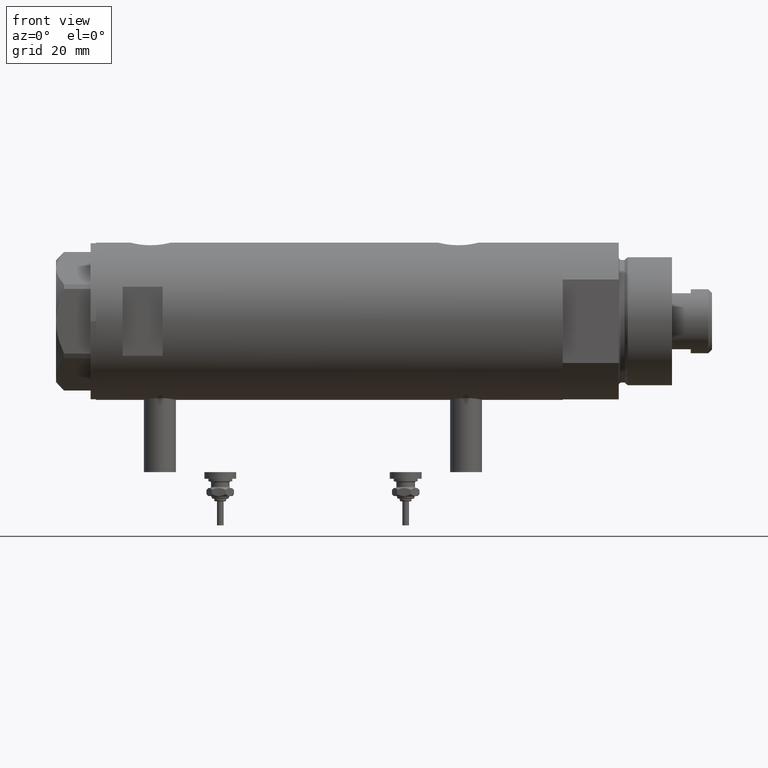
[diagram: clean part render]
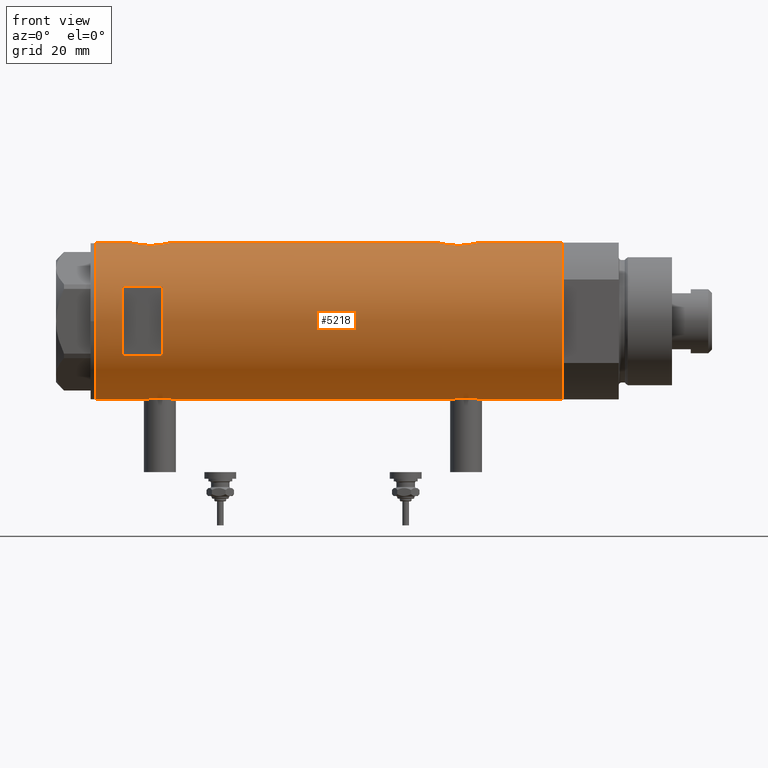
[diagram: same view with one face highlighted and labeled with its STEP entity id]
A machine part, front view. The second image highlights one B-rep face of the part: STEP entity #5218.
In plain terms, the highlighted cylindrical surface (partial cylindrical patch) has radius 29.5 mm, axis along (-1, -0, 0).
Its self-contained STEP definition (entity closure, byte-faithful):
#11 = CARTESIAN_POINT ( 'NONE',  ( 28.53399451186755087, -7.487442594623177961, 67.59897485501115000 ) ) ;
#29 = CARTESIAN_POINT ( 'NONE',  ( 12.96148139681573319, -26.49999999999998934, 77.60000000000002274 ) ) ;
#57 = CARTESIAN_POINT ( 'NONE',  ( -29.49152014567325253, -0.8152473631539829402, 57.38964705166666391 ) ) ;
#73 = CARTESIAN_POINT ( 'NONE',  ( -29.50000000000000355, 3.612708057484692393E-15, -87.59999999999999432 ) ) ;
#78 = CARTESIAN_POINT ( 'NONE',  ( 29.50000000000000355, -2.136503572369537054E-15, 59.59999999999999432 ) ) ;
#92 = DIRECTION ( 'NONE',  ( 0.000000000000000000, 0.000000000000000000, 1.000000000000000000 ) ) ;
#130 = VERTEX_POINT ( 'NONE', #1765 ) ;
#183 = CARTESIAN_POINT ( 'NONE',  ( -29.37055817176825556, -2.766456155496577196, -56.90813607588912504 ) ) ;
#191 = CARTESIAN_POINT ( 'NONE',  ( -28.83909499632370199, -6.209928350489659188, 64.41617781082960903 ) ) ;
#203 = CARTESIAN_POINT ( 'NONE',  ( 29.43916859571211120, -1.954329820671499407, -55.65764479242087504 ) ) ;
#228 = AXIS2_PLACEMENT_3D ( 'NONE', #3352, #2902, #3819 ) ;
#267 = CARTESIAN_POINT ( 'NONE',  ( -29.21016169868140366, -4.135295259288787051, 68.30390088086507205 ) ) ;
#294 = CARTESIAN_POINT ( 'NONE',  ( -28.83034328164762528, -6.249904501012242264, 63.39085460435941854 ) ) ;
#310 = CARTESIAN_POINT ( 'NONE',  ( -28.96072448608914485, -5.617106371651703789, -48.52917268339558632 ) ) ;
#319 = AXIS2_PLACEMENT_3D ( 'NONE', #2784, #528, #1010 ) ;
#341 = CARTESIAN_POINT ( 'NONE',  ( 28.89374408016308848, -5.952042782108791563, -43.83015462974033483 ) ) ;
#368 = CARTESIAN_POINT ( 'NONE',  ( 28.59279484545186989, -7.260293545345763100, -50.34406557984473096 ) ) ;
#371 = CARTESIAN_POINT ( 'NONE',  ( -29.50000000000000711, -0.4141077724969866591, -45.04999999999999005 ) ) ;
#390 = CARTESIAN_POINT ( 'NONE',  ( 29.26065241255352589, -3.756597382275444819, -41.90395565180811133 ) ) ;
#397 = ORIENTED_EDGE ( 'NONE', *, *, #4374, .F. ) ;
#402 = DIRECTION ( 'NONE',  ( -0.000000000000000000, -0.000000000000000000, -1.000000000000000000 ) ) ;
#405 = CARTESIAN_POINT ( 'NONE',  ( 28.55627543367308618, -7.402134446380869370, 68.33219650318235949 ) ) ;
#430 = ORIENTED_EDGE ( 'NONE', *, *, #4538, .T. ) ;
#439 = CARTESIAN_POINT ( 'NONE',  ( 28.62983003203746435, -7.114781472982441457, 64.67726941146263187 ) ) ;
#442 = AXIS2_PLACEMENT_3D ( 'NONE', #3355, #2541, #1090 ) ;
#495 = CARTESIAN_POINT ( 'NONE',  ( 29.14351131874355971, -4.576283785862454323, 61.15294675151478287 ) ) ;
#522 = CARTESIAN_POINT ( 'NONE',  ( -12.96148139681573319, -26.49999999999999645, -87.59999999999999432 ) ) ;
#525 = DIRECTION ( 'NONE',  ( 0.000000000000000000, 0.000000000000000000, 1.000000000000000000 ) ) ;
#528 = DIRECTION ( 'NONE',  ( 0.000000000000000000, 0.000000000000000000, 1.000000000000000000 ) ) ;
#557 = CARTESIAN_POINT ( 'NONE',  ( 29.31438578683260232, -3.335040812377226604, 60.36452723156224920 ) ) ;
#563 = VERTEX_POINT ( 'NONE', #29 ) ;
#598 = CARTESIAN_POINT ( 'NONE',  ( -29.21108587560690495, -4.128853169727751293, 58.89032723090409149 ) ) ;
#606 = CARTESIAN_POINT ( 'NONE',  ( 29.31438578683259522, -3.335040812377227937, -55.13547276843772238 ) ) ;
#636 = CARTESIAN_POINT ( 'NONE',  ( 29.08168479815708451, -4.954011967599717181, -54.03627368515270035 ) ) ;
#646 = CARTESIAN_POINT ( 'NONE',  ( -29.45797511864983420, -1.625450914296657334, -57.34905127530046087 ) ) ;
#669 = CARTESIAN_POINT ( 'NONE',  ( -29.33428005013168871, -3.127775714777722982, -56.71493203872592659 ) ) ;
#675 = VERTEX_POINT ( 'NONE', #1679 ) ;
#680 = CARTESIAN_POINT ( 'NONE',  ( -29.50000000000000355, -1.989795151372050188E-15, -45.04999999999999005 ) ) ;
#700 = CARTESIAN_POINT ( 'NONE',  ( -29.21108587560690495, -4.128853169727750405, -56.00967276909590709 ) ) ;
#704 = ORIENTED_EDGE ( 'NONE', *, *, #3252, .F. ) ;
#741 = CARTESIAN_POINT ( 'NONE',  ( 29.50000000000001066, -0.4905639552620957300, 74.59999999999998010 ) ) ;
#747 = ORIENTED_EDGE ( 'NONE', *, *, #869, .T. ) ;
#783 = CARTESIAN_POINT ( 'NONE',  ( 29.40378957563275009, -2.423455993307766398, -41.28550539884014370 ) ) ;
#785 = CARTESIAN_POINT ( 'NONE',  ( -28.83028160285195440, -6.250189016175739631, -50.89032996785321927 ) ) ;
#813 = CARTESIAN_POINT ( 'NONE',  ( 29.33743940633121028, -3.100990836771690073, -41.56672487560935281 ) ) ;
#854 = CARTESIAN_POINT ( 'NONE',  ( 12.96148139681573319, -26.49999999999999645, -87.59999999999999432 ) ) ;
#856 = CARTESIAN_POINT ( 'NONE',  ( 29.50000000000000355, -8.867894669064240341E-21, 74.59999999999999432 ) ) ;
#869 = EDGE_CURVE ( 'NONE', #4144, #675, #2700, .T. ) ;
#870 = CARTESIAN_POINT ( 'NONE',  ( 28.59337635119608123, -7.258007499531542450, -46.44783774348638872 ) ) ;
#873 = CARTESIAN_POINT ( 'NONE',  ( -29.05872136210574297, -5.084685578900233871, -47.65990008091242203 ) ) ;
#887 = CARTESIAN_POINT ( 'NONE',  ( 28.54678862679669749, -7.438514536388028731, 68.08958274320792725 ) ) ;
#920 = CARTESIAN_POINT ( 'NONE',  ( 28.95592074821773210, -5.641779806288288235, 62.15226504197970314 ) ) ;
#930 = CARTESIAN_POINT ( 'NONE',  ( -29.50000000000000355, 3.612708057484692393E-15, 87.59999999999999432 ) ) ;
#940 = CARTESIAN_POINT ( 'NONE',  ( -29.50000000000000355, 3.612708057484692393E-15, -87.59999999999999432 ) ) ;
#949 = CARTESIAN_POINT ( 'NONE',  ( 29.08168479815707386, -4.954011967599708299, 61.46372631484727833 ) ) ;
#999 = CIRCLE ( 'NONE', #228, 29.50000000000000355 ) ;
#1010 = DIRECTION ( 'NONE',  ( 1.000000000000000000, 0.000000000000000000, 0.000000000000000000 ) ) ;
#1069 = DIRECTION ( 'NONE',  ( 1.000000000000000000, 0.000000000000000000, 0.000000000000000000 ) ) ;
#1074 = CARTESIAN_POINT ( 'NONE',  ( -29.37055817176824490, -2.766456155496578084, 57.99186392411088775 ) ) ;
#1090 = DIRECTION ( 'NONE',  ( 1.776356839400250267E-15, 1.000000000000000000, 4.704334850106595203E-15 ) ) ;
#1094 = CARTESIAN_POINT ( 'NONE',  ( -29.50000000000000711, -0.4084468586314279337, -57.55000000000000426 ) ) ;
#1149 = DIRECTION ( 'NONE',  ( 0.000000000000000000, 0.000000000000000000, 1.000000000000000000 ) ) ;
#1175 = CARTESIAN_POINT ( 'NONE',  ( -28.91427970886711307, -5.849862889315922132, -53.50993133128852008 ) ) ;
#1192 = CARTESIAN_POINT ( 'NONE',  ( -29.45566469296798928, -1.628675872921093726, 69.63756032628675996 ) ) ;
#1236 = VERTEX_POINT ( 'NONE', #1813 ) ;
#1242 = CARTESIAN_POINT ( 'NONE',  ( -28.84137202824161861, -6.198846007008993908, -52.12388261123874145 ) ) ;
#1264 = CARTESIAN_POINT ( 'NONE',  ( 28.95619957017310497, -5.640369376407877056, -43.45060273509821513 ) ) ;
#1266 = CARTESIAN_POINT ( 'NONE',  ( -29.33479068874800433, -3.136645782783870295, -45.87844745385529421 ) ) ;
#1277 = CARTESIAN_POINT ( 'NONE',  ( 29.33743940633120673, -3.100990836771692294, 73.93327512439066140 ) ) ;
#1289 = CIRCLE ( 'NONE', #3464, 29.50000000000000355 ) ;
#1330 = CARTESIAN_POINT ( 'NONE',  ( 29.50000000000001066, -0.4905639552620955079, -40.89999999999999858 ) ) ;
#1332 = DIRECTION ( 'NONE',  ( 0.000000000000000000, 0.000000000000000000, 1.000000000000000000 ) ) ;
#1365 = CARTESIAN_POINT ( 'NONE',  ( 28.86290657878784671, -6.099358034152101204, 62.72869329957394058 ) ) ;
#1392 = CARTESIAN_POINT ( 'NONE',  ( 29.50000000000000355, -2.136503572369537054E-15, 59.59999999999999432 ) ) ;
#1414 = CARTESIAN_POINT ( 'NONE',  ( 29.50000000000000355, -8.867894669064240341E-21, 74.59999999999999432 ) ) ;
#1425 = LINE ( 'NONE', #522, #3934 ) ;
#1439 = VERTEX_POINT ( 'NONE', #5563 ) ;
#1465 = CARTESIAN_POINT ( 'NONE',  ( -29.38738983525000137, -2.582042051636497693, 57.90464828404618913 ) ) ;
#1582 = CARTESIAN_POINT ( 'NONE',  ( -28.83028160285196151, -6.250189016175732526, 64.00967003214678641 ) ) ;
#1616 = CARTESIAN_POINT ( 'NONE',  ( -29.14490888978862770, -4.565669626908225531, 67.87298179876214022 ) ) ;
#1679 = CARTESIAN_POINT ( 'NONE',  ( 29.50000000000000355, -1.363453657738827866E-15, -55.89999999999999858 ) ) ;
#1698 = CARTESIAN_POINT ( 'NONE',  ( -28.89828397447510255, -5.929977241120610643, -49.28388047758001989 ) ) ;
#1704 = LINE ( 'NONE', #854, #5191 ) ;
#1721 = CARTESIAN_POINT ( 'NONE',  ( 28.55627543367308618, -7.402134446380870259, -47.16780349681763340 ) ) ;
#1731 = CARTESIAN_POINT ( 'NONE',  ( 28.98816846638396427, -5.474212100855878838, 72.23252159883305978 ) ) ;
#1765 = CARTESIAN_POINT ( 'NONE',  ( 12.96148139681573319, -26.49999999999998934, 62.59999999999998721 ) ) ;
#1780 = CYLINDRICAL_SURFACE ( 'NONE', #2049, 29.50000000000000355 ) ;
#1783 = CARTESIAN_POINT ( 'NONE',  ( 28.72051071455671334, -6.739402597165489617, -51.72718973703752710 ) ) ;
#1805 = FACE_OUTER_BOUND ( 'NONE', #2786, .T. ) ;
#1809 = CARTESIAN_POINT ( 'NONE',  ( -28.83260549167351527, -6.239494599049535850, -51.71615084301800636 ) ) ;
#1813 = CARTESIAN_POINT ( 'NONE',  ( -29.50000000000000355, -3.685106651658548747E-16, 69.84999999999999432 ) ) ;
#1818 = CARTESIAN_POINT ( 'NONE',  ( 29.40305664607911140, -2.432276947006145829, 59.98852198993411378 ) ) ;
#1843 = CARTESIAN_POINT ( 'NONE',  ( 28.53070445389874621, -7.499926890973428684, 67.34953420512916011 ) ) ;
#1897 = CARTESIAN_POINT ( 'NONE',  ( 28.77424839213764329, -6.509286280845849149, 63.34218748394043530 ) ) ;
#1907 = CARTESIAN_POINT ( 'NONE',  ( -29.43333839972900634, -2.017691896334577351, 57.67064010952157105 ) ) ;
#1912 = EDGE_CURVE ( 'NONE', #4733, #4736, #5869, .T. ) ;
#1936 = CARTESIAN_POINT ( 'NONE',  ( -29.25427426731712544, -3.815048240656437439, 58.63259231846663511 ) ) ;
#1968 = EDGE_CURVE ( 'NONE', #4234, #4127, #2887, .T. ) ;
#2000 = CARTESIAN_POINT ( 'NONE',  ( 29.50000000000000711, -0.4976091310423220726, -55.89999999999999858 ) ) ;
#2006 = EDGE_CURVE ( 'NONE', #1236, #4234, #4143, .T. ) ;
#2049 = AXIS2_PLACEMENT_3D ( 'NONE', #2294, #4510, #5426 ) ;
#2094 = CARTESIAN_POINT ( 'NONE',  ( 29.48775985681159284, -0.9798361908152555255, 74.55230443881325186 ) ) ;
#2099 = CARTESIAN_POINT ( 'NONE',  ( -29.25361239466581154, -3.820294933898098488, 68.56357989714038581 ) ) ;
#2119 = CARTESIAN_POINT ( 'NONE',  ( -29.41741605749266952, -2.213861184585005137, -45.45168825548628178 ) ) ;
#2134 = CARTESIAN_POINT ( 'NONE',  ( -28.89828397447510255, -5.929977241120604425, 65.61611952241995027 ) ) ;
#2152 = CARTESIAN_POINT ( 'NONE',  ( 28.86327882047615034, -6.097569254709688913, -44.02632909088551827 ) ) ;
#2155 = CARTESIAN_POINT ( 'NONE',  ( -29.08006251441182854, -4.961575945539730803, -47.49381497947474884 ) ) ;
#2162 = DIRECTION ( 'NONE',  ( 0.000000000000000000, 0.000000000000000000, 1.000000000000000000 ) ) ;
#2174 = CARTESIAN_POINT ( 'NONE',  ( 28.62983003203746080, -7.114781472982439681, -50.82273058853737524 ) ) ;
#2177 = CARTESIAN_POINT ( 'NONE',  ( -29.50000000000000355, -1.989795151372050188E-15, -45.04999999999999005 ) ) ;
#2186 = CARTESIAN_POINT ( 'NONE',  ( 29.14531914445117167, -4.579221598645962565, 73.05990232992806455 ) ) ;
#2212 = B_SPLINE_CURVE_WITH_KNOTS ( 'NONE', 3,
 ( #3987, #1330, #5338, #4951, #783, #813, #2654, #390, #2595, #3054, #4430, #2678, #1264, #341, #2152, #4460, #3970, #5809, #870, #1721, #3520, #5360, #5865, #3086, #2627, #368, #2174, #1783, #5834, #3548, #3582, #5428, #4512, #3461, #636, #2924, #2467, #5153, #606, #5681, #203, #2866, #2000, #3789 ),
 .UNSPECIFIED., .F., .F.,
 ( 4, 2, 2, 2, 2, 2, 2, 2, 2, 2, 2, 2, 2, 2, 2, 2, 2, 2, 2, 2, 2, 4 ),
 ( 0.02354540741801906811, 0.02501659793198015777, 0.02648778844594124743, 0.02722338370292179052, 0.02795897895990233362, 0.02943016947386341287, 0.03016576473084396290, 0.03090135998782451293, 0.03237255050178562688, 0.03384374101574673388, 0.03457933627272730126, 0.03531493152970786864, 0.03678612204366901728, 0.03825731255763017286, 0.03972850307159132843, 0.04046409832857190969, 0.04119969358555249095, 0.04193528884253308608, 0.04267088409951366734, 0.04414207461347482986, 0.04561326512743600625, 0.04708445564139716877 ),
 .UNSPECIFIED. ) ;
#2227 = EDGE_CURVE ( 'NONE', #130, #563, #1704, .T. ) ;
#2277 = CARTESIAN_POINT ( 'NONE',  ( 28.98740664105171660, -5.478212189394656484, 61.97180483814205587 ) ) ;
#2294 = CARTESIAN_POINT ( 'NONE',  ( 0.000000000000000000, 0.000000000000000000, -87.59999999999999432 ) ) ;
#2340 = CARTESIAN_POINT ( 'NONE',  ( 29.17410189149616428, -4.377709617224024186, 61.00524172523977740 ) ) ;
#2353 = CARTESIAN_POINT ( 'NONE',  ( -29.45797511864983420, -1.625450914296658667, 57.55094872469953060 ) ) ;
#2376 = CARTESIAN_POINT ( 'NONE',  ( -29.33428005013169226, -3.127775714777723426, 58.18506796127407199 ) ) ;
#2408 = CARTESIAN_POINT ( 'NONE',  ( -28.89999183068147559, -5.919812056825914048, 61.58499761164581798 ) ) ;
#2451 = CARTESIAN_POINT ( 'NONE',  ( -29.38738983525001558, -2.582042051636497693, -56.99535171595380945 ) ) ;
#2467 = CARTESIAN_POINT ( 'NONE',  ( 29.17410189149616428, -4.377709617224021521, -54.49475827476019418 ) ) ;
#2498 = EDGE_CURVE ( 'NONE', #4941, #3022, #5909, .T. ) ;
#2511 = CARTESIAN_POINT ( 'NONE',  ( -29.12379578281189296, -4.705261494361431041, -55.43387957720276660 ) ) ;
#2541 = DIRECTION ( 'NONE',  ( -0.000000000000000000, -4.625929269271487689E-15, 1.000000000000000000 ) ) ;
#2545 = EDGE_CURVE ( 'NONE', #2739, #4736, #5431, .T. ) ;
#2576 = EDGE_CURVE ( 'NONE', #4733, #4127, #5433, .T. ) ;
#2582 = CARTESIAN_POINT ( 'NONE',  ( 29.50000000000000355, 0.000000000000000000, -87.59999999999999432 ) ) ;
#2590 = ORIENTED_EDGE ( 'NONE', *, *, #2227, .F. ) ;
#2595 = CARTESIAN_POINT ( 'NONE',  ( 29.23250901027695647, -3.968959760999266617, -42.03153982712338177 ) ) ;
#2627 = CARTESIAN_POINT ( 'NONE',  ( 28.54347630091233867, -7.451827970232786313, -49.38056781783959792 ) ) ;
#2630 = CARTESIAN_POINT ( 'NONE',  ( -29.45566469296797507, -1.628675872921105938, -45.26243967371323862 ) ) ;
#2654 = CARTESIAN_POINT ( 'NONE',  ( 29.31311917412636348, -3.322476152549152406, -41.67157014735705189 ) ) ;
#2678 = CARTESIAN_POINT ( 'NONE',  ( 28.98816846638396072, -5.474212100855873508, -43.26747840116693311 ) ) ;
#2695 = CARTESIAN_POINT ( 'NONE',  ( 28.53064705443911464, -7.500145243772284864, 66.60755296708883577 ) ) ;
#2700 = LINE ( 'NONE', #4898, #5365 ) ;
#2729 = CARTESIAN_POINT ( 'NONE',  ( -29.50000000000000355, 3.612708057484692393E-15, -87.59999999999999432 ) ) ;
#2733 = CARTESIAN_POINT ( 'NONE',  ( 29.49999999999999289, -0.4976091310423251812, 59.59999999999998721 ) ) ;
#2739 = VERTEX_POINT ( 'NONE', #4209 ) ;
#2758 = ORIENTED_EDGE ( 'NONE', *, *, #4820, .F. ) ;
#2784 = CARTESIAN_POINT ( 'NONE',  ( 0.000000000000000000, 0.000000000000000000, 87.59999999999999432 ) ) ;
#2786 = EDGE_LOOP ( 'NONE', ( #2758, #430, #747, #704, #5558, #3763, #5237, #3662, #5469, #4875, #4677, #2832 ) ) ;
#2832 = ORIENTED_EDGE ( 'NONE', *, *, #2498, .F. ) ;
#2856 = CARTESIAN_POINT ( 'NONE',  ( 0.000000000000000000, 0.000000000000000000, 77.60000000000002274 ) ) ;
#2858 = CARTESIAN_POINT ( 'NONE',  ( -28.96147498926091046, -5.613273026676365518, 60.82107301657418930 ) ) ;
#2866 = CARTESIAN_POINT ( 'NONE',  ( 29.48742104091792982, -0.9879539515379943682, -55.85095698353980964 ) ) ;
#2887 = CIRCLE ( 'NONE', #319, 29.50000000000000355 ) ;
#2902 = DIRECTION ( 'NONE',  ( 0.000000000000000000, 0.000000000000000000, 1.000000000000000000 ) ) ;
#2924 = CARTESIAN_POINT ( 'NONE',  ( 29.14351131874355261, -4.576283785862462317, -54.34705324848517449 ) ) ;
#2945 = CARTESIAN_POINT ( 'NONE',  ( -29.50000000000000000, -0.4141077724969871032, 69.85000000000000853 ) ) ;
#2963 = CARTESIAN_POINT ( 'NONE',  ( -29.50000000000000355, 3.612706708267620518E-15, -57.55000000000000426 ) ) ;
#3022 = VERTEX_POINT ( 'NONE', #680 ) ;
#3042 = CARTESIAN_POINT ( 'NONE',  ( -29.49128673965871172, -0.8227026017531454682, 69.80924441072093600 ) ) ;
#3054 = CARTESIAN_POINT ( 'NONE',  ( 29.14531914445117522, -4.579221598645967006, -42.44009767007190703 ) ) ;
#3066 = CARTESIAN_POINT ( 'NONE',  ( 29.08294968506023181, -4.955368226349210481, 72.75096718198464885 ) ) ;
#3086 = CARTESIAN_POINT ( 'NONE',  ( 28.53064705443910043, -7.500145243772282200, -48.89244703291117844 ) ) ;
#3088 = CARTESIAN_POINT ( 'NONE',  ( -29.37136442049237317, -2.777615426151012201, -45.68634887377884013 ) ) ;
#3097 = VECTOR ( 'NONE', #525, 1000.000000000000000 ) ;
#3102 = CARTESIAN_POINT ( 'NONE',  ( 28.72151714661535848, -6.735173278284142917, 70.43640470570873902 ) ) ;
#3111 = CIRCLE ( 'NONE', #442, 29.50000000000000355 ) ;
#3121 = CARTESIAN_POINT ( 'NONE',  ( -28.87288655002252113, -6.050870399762851015, -49.68249459278194990 ) ) ;
#3152 = CARTESIAN_POINT ( 'NONE',  ( -28.99772237063718094, -5.425436006677739620, -48.17037325447357432 ) ) ;
#3191 = CARTESIAN_POINT ( 'NONE',  ( 28.54347630091234933, -7.451827970232792531, 66.11943218216043761 ) ) ;
#3213 = EDGE_CURVE ( 'NONE', #3022, #1439, #3243, .T. ) ;
#3243 = LINE ( 'NONE', #2729, #3097 ) ;
#3252 = EDGE_CURVE ( 'NONE', #2739, #675, #2212, .T. ) ;
#3263 = EDGE_LOOP ( 'NONE', ( #3402, #397, #4986, #2590 ) ) ;
#3312 = CARTESIAN_POINT ( 'NONE',  ( -28.99856997507319534, -5.420860550814439627, 60.46276987854197671 ) ) ;
#3352 = CARTESIAN_POINT ( 'NONE',  ( 0.000000000000000000, 0.000000000000000000, -87.59999999999999432 ) ) ;
#3355 = CARTESIAN_POINT ( 'NONE',  ( 0.000000000000000000, 0.000000000000000000, 62.60000000000011511 ) ) ;
#3379 = EDGE_CURVE ( 'NONE', #563, #5476, #1289, .T. ) ;
#3390 = CARTESIAN_POINT ( 'NONE',  ( -28.96072448608914840, -5.617106371651694907, 66.37082731660440515 ) ) ;
#3402 = ORIENTED_EDGE ( 'NONE', *, *, #5160, .F. ) ;
#3413 = CARTESIAN_POINT ( 'NONE',  ( -29.50000000000000355, 3.612708057484692393E-15, -87.59999999999999432 ) ) ;
#3432 = CARTESIAN_POINT ( 'NONE',  ( -28.99856997507319534, -5.420860550814444956, -54.43723012145802187 ) ) ;
#3442 = CARTESIAN_POINT ( 'NONE',  ( -29.43130053621386111, -2.021711243143687664, 69.51755045960182144 ) ) ;
#3461 = CARTESIAN_POINT ( 'NONE',  ( 29.05028789344173745, -5.134328181356786480, -53.87246457606267569 ) ) ;
#3464 = AXIS2_PLACEMENT_3D ( 'NONE', #2856, #5168, #1069 ) ;
#3477 = CARTESIAN_POINT ( 'NONE',  ( -29.46613381094001127, -1.427468570127964798, 69.68827540540398502 ) ) ;
#3520 = CARTESIAN_POINT ( 'NONE',  ( 28.54678862679669038, -7.438514536388029619, -47.41041725679210828 ) ) ;
#3522 = CARTESIAN_POINT ( 'NONE',  ( -29.21016169868139656, -4.135295259288792380, -46.59609911913489810 ) ) ;
#3531 = CARTESIAN_POINT ( 'NONE',  ( 29.31311917412636348, -3.322476152549144413, 73.82842985264291258 ) ) ;
#3548 = CARTESIAN_POINT ( 'NONE',  ( 28.86290657878785737, -6.099358034152089658, -52.77130670042607363 ) ) ;
#3560 = CARTESIAN_POINT ( 'NONE',  ( 28.62986945670069261, -7.114680680403731472, 69.52393776006691439 ) ) ;
#3582 = CARTESIAN_POINT ( 'NONE',  ( 28.89374847711160399, -5.952001739005051917, -52.96983981079635129 ) ) ;
#3584 = CARTESIAN_POINT ( 'NONE',  ( -29.25361239466581154, -3.820294933898107814, -46.33642010285959145 ) ) ;
#3662 = ORIENTED_EDGE ( 'NONE', *, *, #1968, .F. ) ;
#3736 = CARTESIAN_POINT ( 'NONE',  ( 28.59279484545187344, -7.260293545345771982, 65.15593442015531878 ) ) ;
#3763 = ORIENTED_EDGE ( 'NONE', *, *, #1912, .F. ) ;
#3789 = CARTESIAN_POINT ( 'NONE',  ( 29.50000000000000355, -1.363453657738827866E-15, -55.89999999999999858 ) ) ;
#3803 = CARTESIAN_POINT ( 'NONE',  ( -29.07948744859177026, -4.968520850090769159, 59.78663632621105961 ) ) ;
#3819 = DIRECTION ( 'NONE',  ( 1.000000000000000000, 0.000000000000000000, 0.000000000000000000 ) ) ;
#3834 = CARTESIAN_POINT ( 'NONE',  ( -29.37136442049236962, -2.777615426151009981, 69.21365112622116555 ) ) ;
#3884 = CARTESIAN_POINT ( 'NONE',  ( -29.25427426731712188, -3.815048240656438772, -56.26740768153337058 ) ) ;
#3896 = CARTESIAN_POINT ( 'NONE',  ( -29.33479068874799722, -3.136645782783865410, 69.02155254614469015 ) ) ;
#3919 = CARTESIAN_POINT ( 'NONE',  ( 29.23250901027695647, -3.968959760999262176, 73.46846017287660402 ) ) ;
#3931 = CARTESIAN_POINT ( 'NONE',  ( 29.50000000000000355, 0.000000000000000000, 87.59999999999999432 ) ) ;
#3934 = VECTOR ( 'NONE', #402, 1000.000000000000000 ) ;
#3952 = CARTESIAN_POINT ( 'NONE',  ( -29.50000000000000355, -3.685106651658548747E-16, 69.84999999999999432 ) ) ;
#3970 = CARTESIAN_POINT ( 'NONE',  ( 28.72151714661536204, -6.735173278284145582, -45.06359529429126098 ) ) ;
#3972 = CARTESIAN_POINT ( 'NONE',  ( -29.12311479234994849, -4.702282052053738504, -47.17776471113516124 ) ) ;
#3987 = CARTESIAN_POINT ( 'NONE',  ( 29.50000000000000355, -8.867894669064240341E-21, -40.89999999999999858 ) ) ;
#4000 = CARTESIAN_POINT ( 'NONE',  ( 28.95619957017310853, -5.640369376407880608, 72.04939726490175644 ) ) ;
#4029 = VECTOR ( 'NONE', #4088, 1000.000000000000000 ) ;
#4068 = CARTESIAN_POINT ( 'NONE',  ( 28.89374847711160754, -5.952001739005052805, 62.53016018920364161 ) ) ;
#4084 = FACE_BOUND ( 'NONE', #3263, .T. ) ;
#4088 = DIRECTION ( 'NONE',  ( 0.000000000000000000, 0.000000000000000000, 1.000000000000000000 ) ) ;
#4096 = CARTESIAN_POINT ( 'NONE',  ( 29.43916859571210409, -1.954329820671502960, 59.84235520757910365 ) ) ;
#4127 = VERTEX_POINT ( 'NONE', #3931 ) ;
#4143 = LINE ( 'NONE', #940, #4506 ) ;
#4144 = VERTEX_POINT ( 'NONE', #2582 ) ;
#4158 = CARTESIAN_POINT ( 'NONE',  ( 29.26166309680877475, -3.765013078516707967, 60.59489767946936212 ) ) ;
#4209 = CARTESIAN_POINT ( 'NONE',  ( 29.50000000000000355, -8.867894669064240341E-21, -40.89999999999999858 ) ) ;
#4234 = VERTEX_POINT ( 'NONE', #930 ) ;
#4280 = VERTEX_POINT ( 'NONE', #73 ) ;
#4306 = CARTESIAN_POINT ( 'NONE',  ( -29.31475612970062627, -3.305202271067059883, -56.60847868843855224 ) ) ;
#4320 = CARTESIAN_POINT ( 'NONE',  ( -29.05872136210575363, -5.084685578900223213, 67.24009991908759787 ) ) ;
#4342 = CARTESIAN_POINT ( 'NONE',  ( -29.07948744859177381, -4.968520850090770935, -55.11336367378893186 ) ) ;
#4353 = CARTESIAN_POINT ( 'NONE',  ( -28.83260549167351527, -6.239494599049532297, 63.18384915698199933 ) ) ;
#4374 = EDGE_CURVE ( 'NONE', #5476, #4703, #1425, .T. ) ;
#4382 = CARTESIAN_POINT ( 'NONE',  ( -28.85437274499025762, -6.138402965889063978, 62.37243403294917954 ) ) ;
#4430 = CARTESIAN_POINT ( 'NONE',  ( 29.08294968506023537, -4.955368226349206040, -42.74903281801533694 ) ) ;
#4432 = CARTESIAN_POINT ( 'NONE',  ( -28.83909499632370199, -6.209928350489668958, -50.48382218917042508 ) ) ;
#4460 = CARTESIAN_POINT ( 'NONE',  ( 28.77541267587658780, -6.504036106227640168, -44.63371449864085605 ) ) ;
#4462 = CARTESIAN_POINT ( 'NONE',  ( -29.49128673965872238, -0.8227026017531590130, -45.09075558927904126 ) ) ;
#4495 = CARTESIAN_POINT ( 'NONE',  ( 29.26065241255351523, -3.756597382275435493, 73.59604434819190999 ) ) ;
#4506 = VECTOR ( 'NONE', #92, 1000.000000000000000 ) ;
#4510 = DIRECTION ( 'NONE',  ( 0.000000000000000000, 0.000000000000000000, 1.000000000000000000 ) ) ;
#4512 = CARTESIAN_POINT ( 'NONE',  ( 28.98740664105171305, -5.478212189394655596, -53.52819516185792281 ) ) ;
#4529 = CARTESIAN_POINT ( 'NONE',  ( 28.72051071455672044, -6.739402597165490505, 63.77281026296248712 ) ) ;
#4538 = EDGE_CURVE ( 'NONE', #4280, #4144, #999, .T. ) ;
#4565 = CARTESIAN_POINT ( 'NONE',  ( -12.96148139681573319, -26.49999999999998934, 62.59999999999998721 ) ) ;
#4605 = CARTESIAN_POINT ( 'NONE',  ( 29.05028789344172324, -5.134328181356783816, 61.62753542393731010 ) ) ;
#4677 = ORIENTED_EDGE ( 'NONE', *, *, #3213, .F. ) ;
#4703 = VERTEX_POINT ( 'NONE', #4565 ) ;
#4707 = CARTESIAN_POINT ( 'NONE',  ( -29.12379578281188586, -4.705261494361431041, 59.46612042279722488 ) ) ;
#4723 = CARTESIAN_POINT ( 'NONE',  ( -29.49152014567325253, -0.8152473631539818300, -57.51035294833331335 ) ) ;
#4733 = VERTEX_POINT ( 'NONE', #1414 ) ;
#4736 = VERTEX_POINT ( 'NONE', #1392 ) ;
#4763 = LINE ( 'NONE', #3413, #5586 ) ;
#4768 = CARTESIAN_POINT ( 'NONE',  ( -28.99772237063718094, -5.425436006677728074, 66.72962674552641715 ) ) ;
#4786 = CARTESIAN_POINT ( 'NONE',  ( -29.43333839972900634, -2.017691896334575574, -57.22935989047839200 ) ) ;
#4798 = VECTOR ( 'NONE', #1332, 1000.000000000000000 ) ;
#4800 = CARTESIAN_POINT ( 'NONE',  ( -28.87532468301956712, -6.038983942005351047, 61.97670632311463379 ) ) ;
#4820 = EDGE_CURVE ( 'NONE', #4280, #4941, #4763, .T. ) ;
#4823 = CARTESIAN_POINT ( 'NONE',  ( -12.96148139681573319, -26.49999999999998934, 77.60000000000002274 ) ) ;
#4870 = CARTESIAN_POINT ( 'NONE',  ( -28.87288655002252113, -6.050870399762837692, 65.21750540721804157 ) ) ;
#4875 = ORIENTED_EDGE ( 'NONE', *, *, #5448, .F. ) ;
#4885 = CARTESIAN_POINT ( 'NONE',  ( -28.89999183068148625, -5.919812056825922042, -53.31500238835418060 ) ) ;
#4896 = CARTESIAN_POINT ( 'NONE',  ( 28.86327882047615034, -6.097569254709694242, 71.47367090911446041 ) ) ;
#4898 = CARTESIAN_POINT ( 'NONE',  ( 29.50000000000000355, 0.000000000000000000, -87.59999999999999432 ) ) ;
#4921 = CARTESIAN_POINT ( 'NONE',  ( -29.43130053621386111, -2.021711243143700543, -45.38244954039817003 ) ) ;
#4941 = VERTEX_POINT ( 'NONE', #5101 ) ;
#4951 = CARTESIAN_POINT ( 'NONE',  ( 29.43922820968270671, -1.954457150219038208, -41.14210652754225350 ) ) ;
#4977 = CARTESIAN_POINT ( 'NONE',  ( 29.50000000000000355, 0.000000000000000000, -87.59999999999999432 ) ) ;
#4986 = ORIENTED_EDGE ( 'NONE', *, *, #3379, .F. ) ;
#5061 = CARTESIAN_POINT ( 'NONE',  ( -29.50000000000000355, 3.612706708236066082E-15, 57.34999999999998721 ) ) ;
#5101 = CARTESIAN_POINT ( 'NONE',  ( -29.50000000000000355, 3.612706708267620518E-15, -57.55000000000000426 ) ) ;
#5114 = CARTESIAN_POINT ( 'NONE',  ( -29.31475612970062983, -3.305202271067059439, 58.29152131156144634 ) ) ;
#5145 = CARTESIAN_POINT ( 'NONE',  ( -28.91427970886709886, -5.849862889315915915, 61.39006866871145718 ) ) ;
#5153 = CARTESIAN_POINT ( 'NONE',  ( 29.26166309680877475, -3.765013078516705303, -54.90510232053061657 ) ) ;
#5160 = EDGE_CURVE ( 'NONE', #4703, #130, #3111, .T. ) ;
#5168 = DIRECTION ( 'NONE',  ( -0.000000000000000000, 0.000000000000000000, -1.000000000000000000 ) ) ;
#5191 = VECTOR ( 'NONE', #2162, 1000.000000000000000 ) ;
#5218 = ADVANCED_FACE ( 'NONE', ( #1805, #4084 ), #1780, .T. ) ;
#5226 = CARTESIAN_POINT ( 'NONE',  ( -29.41741605749265887, -2.213861184585002917, 69.44831174451371680 ) ) ;
#5237 = ORIENTED_EDGE ( 'NONE', *, *, #2576, .T. ) ;
#5274 = CARTESIAN_POINT ( 'NONE',  ( -28.96147498926092112, -5.613273026676372623, -54.07892698342580218 ) ) ;
#5338 = CARTESIAN_POINT ( 'NONE',  ( 29.48775985681159284, -0.9798361908152568578, -40.94769556118675524 ) ) ;
#5347 = CARTESIAN_POINT ( 'NONE',  ( 29.40378957563274298, -2.423455993307769951, 74.21449460115982788 ) ) ;
#5351 = CARTESIAN_POINT ( 'NONE',  ( -28.84137202824161150, -6.198846007008987691, 62.77611738876123582 ) ) ;
#5360 = CARTESIAN_POINT ( 'NONE',  ( 28.53399451186755442, -7.487442594623181513, -47.90102514498886421 ) ) ;
#5365 = VECTOR ( 'NONE', #5849, 1000.000000000000000 ) ;
#5370 = CARTESIAN_POINT ( 'NONE',  ( 28.77541267587657003, -6.504036106227640168, 70.86628550135910132 ) ) ;
#5386 = CARTESIAN_POINT ( 'NONE',  ( -29.50000000000000711, -0.4084468586314314309, 57.35000000000000142 ) ) ;
#5398 = CARTESIAN_POINT ( 'NONE',  ( -28.87532468301956357, -6.038983942005355487, -52.92329367688535768 ) ) ;
#5406 = CARTESIAN_POINT ( 'NONE',  ( 28.59337635119608123, -7.258007499531540674, 69.05216225651359707 ) ) ;
#5426 = DIRECTION ( 'NONE',  ( 1.000000000000000000, 0.000000000000000000, 0.000000000000000000 ) ) ;
#5428 = CARTESIAN_POINT ( 'NONE',  ( 28.95592074821772854, -5.641779806288289123, -53.34773495802030396 ) ) ;
#5431 = LINE ( 'NONE', #5902, #4798 ) ;
#5433 = LINE ( 'NONE', #4977, #4029 ) ;
#5448 = EDGE_CURVE ( 'NONE', #1439, #1236, #5554, .T. ) ;
#5469 = ORIENTED_EDGE ( 'NONE', *, *, #2006, .F. ) ;
#5476 = VERTEX_POINT ( 'NONE', #4823 ) ;
#5551 = CARTESIAN_POINT ( 'NONE',  ( 29.48742104091791560, -0.9879539515379935910, 59.64904301646021167 ) ) ;
#5554 = B_SPLINE_CURVE_WITH_KNOTS ( 'NONE', 3,
 ( #5061, #5386, #57, #2353, #1907, #1465, #1074, #2376, #5114, #1936, #598, #4707, #3803, #3312, #2858, #5145, #2408, #4800, #4382, #5351, #4353, #294, #1582, #191, #4870, #2134, #3390, #4768, #4320, #5703, #5763, #1616, #267, #2099, #3896, #3834, #5226, #3442, #1192, #3477, #3042, #2945, #3952 ),
 .UNSPECIFIED., .F., .F.,
 ( 4, 2, 2, 2, 2, 2, 2, 2, 2, 1, 2, 2, 2, 2, 2, 2, 2, 2, 2, 2, 2, 4 ),
 ( 0.01959598605283711936, 0.02082041500883364399, 0.02204484396483016861, 0.02265705844282843093, 0.02326927292082668977, 0.02449370187682321787, 0.02571813083281974943, 0.02694255978881627753, 0.02755477426681453290, 0.02816698874481278828, 0.02877920322281106447, 0.02939141770080933719, 0.03061584665680588957, 0.03184027561280244195, 0.03306470456879899433, 0.03367691904679727399, 0.03428913352479554671, 0.03551356248079207134, 0.03673799143678858903, 0.03735020591478684787, 0.03796242039278510672, 0.03918684934878163828 ),
 .UNSPECIFIED. ) ;
#5558 = ORIENTED_EDGE ( 'NONE', *, *, #2545, .T. ) ;
#5563 = CARTESIAN_POINT ( 'NONE',  ( -29.50000000000000355, 3.612706708236066082E-15, 57.34999999999998721 ) ) ;
#5586 = VECTOR ( 'NONE', #1149, 1000.000000000000000 ) ;
#5681 = CARTESIAN_POINT ( 'NONE',  ( 29.40305664607911140, -2.432276947006147605, -55.51147801006586491 ) ) ;
#5703 = CARTESIAN_POINT ( 'NONE',  ( -29.08006251441183565, -4.961575945539723698, 67.40618502052524263 ) ) ;
#5763 = CARTESIAN_POINT ( 'NONE',  ( -29.12311479234994493, -4.702282052053730510, 67.72223528886479471 ) ) ;
#5782 = CARTESIAN_POINT ( 'NONE',  ( -28.85437274499025406, -6.138402965889069307, -52.52756596705081904 ) ) ;
#5794 = CARTESIAN_POINT ( 'NONE',  ( 29.43922820968270671, -1.954457150219034434, 74.35789347245773229 ) ) ;
#5809 = CARTESIAN_POINT ( 'NONE',  ( 28.62986945670068550, -7.114680680403729696, -45.97606223993307850 ) ) ;
#5811 = CARTESIAN_POINT ( 'NONE',  ( -29.14490888978862415, -4.565669626908229084, -47.02701820123782994 ) ) ;
#5834 = CARTESIAN_POINT ( 'NONE',  ( 28.77424839213763264, -6.509286280845835826, -52.15781251605955759 ) ) ;
#5837 = CARTESIAN_POINT ( 'NONE',  ( -28.83034328164761462, -6.249904501012249369, -51.50914539564058003 ) ) ;
#5845 = CARTESIAN_POINT ( 'NONE',  ( 28.89374408016309914, -5.952042782108793340, 71.66984537025965096 ) ) ;
#5849 = DIRECTION ( 'NONE',  ( 0.000000000000000000, 0.000000000000000000, 1.000000000000000000 ) ) ;
#5865 = CARTESIAN_POINT ( 'NONE',  ( 28.53070445389874976, -7.499926890973428684, -48.15046579487084699 ) ) ;
#5868 = CARTESIAN_POINT ( 'NONE',  ( -29.46613381094001483, -1.427468570127977010, -45.21172459459599935 ) ) ;
#5869 = B_SPLINE_CURVE_WITH_KNOTS ( 'NONE', 3,
 ( #856, #741, #2094, #5794, #5347, #1277, #3531, #4495, #3919, #2186, #3066, #1731, #4000, #5845, #4896, #5370, #3102, #3560, #5406, #405, #887, #11, #1843, #2695, #3191, #3736, #439, #4529, #1897, #1365, #4068, #920, #2277, #4605, #949, #495, #2340, #4158, #557, #1818, #4096, #5551, #2733, #78 ),
 .UNSPECIFIED., .F., .F.,
 ( 4, 2, 2, 2, 2, 2, 2, 2, 2, 2, 2, 2, 2, 2, 2, 2, 2, 2, 2, 2, 2, 4 ),
 ( 0.02354540741801906811, 0.02501659793198017859, 0.02648778844594128906, 0.02722338370292184256, 0.02795897895990239954, 0.02943016947386351001, 0.03016576473084408433, 0.03090135998782465171, 0.03237255050178579341, 0.03384374101574693511, 0.03457933627272750943, 0.03531493152970807681, 0.03678612204366921851, 0.03825731255763036021, 0.03972850307159149497, 0.04046409832857204847, 0.04119969358555261585, 0.04193528884253318323, 0.04267088409951375061, 0.04414207461347488537, 0.04561326512743602707, 0.04708445564139716183 ),
 .UNSPECIFIED. ) ;
#5902 = CARTESIAN_POINT ( 'NONE',  ( 29.50000000000000355, 0.000000000000000000, -87.59999999999999432 ) ) ;
#5909 = B_SPLINE_CURVE_WITH_KNOTS ( 'NONE', 3,
 ( #2963, #1094, #4723, #646, #4786, #2451, #183, #669, #4306, #3884, #700, #2511, #4342, #3432, #5274, #1175, #4885, #5398, #5782, #1242, #1809, #5837, #785, #4432, #3121, #1698, #310, #3152, #873, #2155, #3972, #5811, #3522, #3584, #1266, #3088, #2119, #4921, #2630, #5868, #4462, #371, #2177 ),
 .UNSPECIFIED., .F., .F.,
 ( 4, 2, 2, 2, 2, 2, 2, 2, 2, 1, 2, 2, 2, 2, 2, 2, 2, 2, 2, 2, 2, 4 ),
 ( 0.01959598605283713324, 0.02082041500883365093, 0.02204484396483016515, 0.02265705844282842399, 0.02326927292082667936, 0.02449370187682318317, 0.02571813083281968698, 0.02694255978881619079, 0.02755477426681445310, 0.02816698874481271542, 0.02877920322281097426, 0.02939141770080923657, 0.03061584665680577855, 0.03184027561280232399, 0.03306470456879886943, 0.03367691904679714215, 0.03428913352479541488, 0.03551356248079197420, 0.03673799143678854046, 0.03735020591478682705, 0.03796242039278510672, 0.03918684934878167297 ),
 .UNSPECIFIED. ) ;